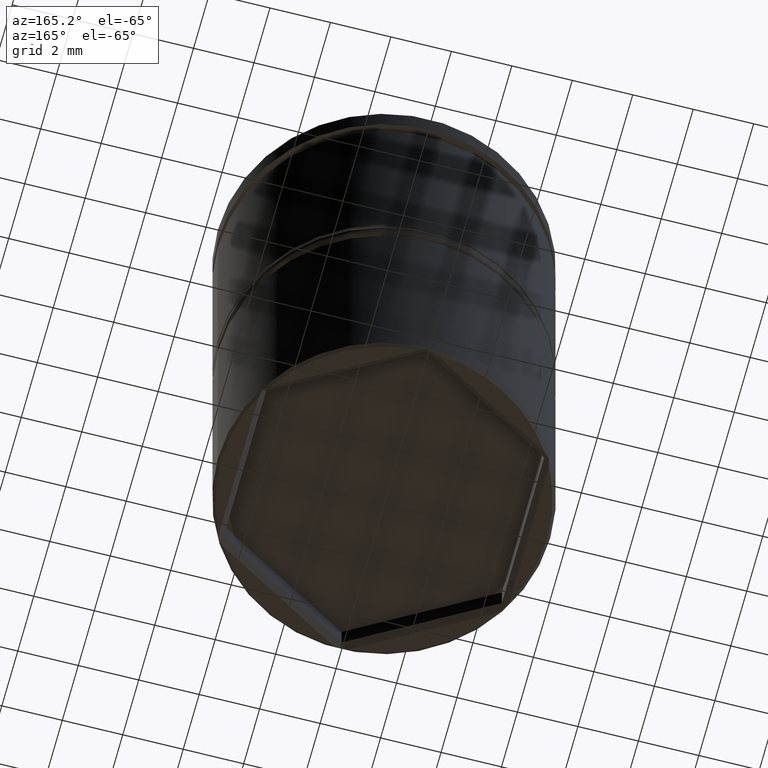
[diagram: clean part render]
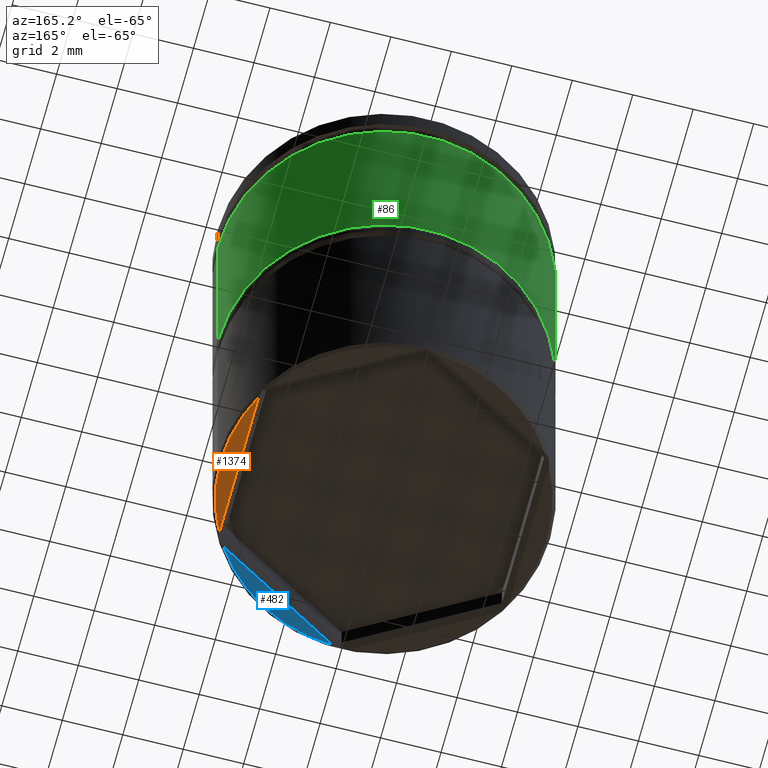
[diagram: same view with three faces highlighted in distinct colors, each labeled with its STEP entity id]
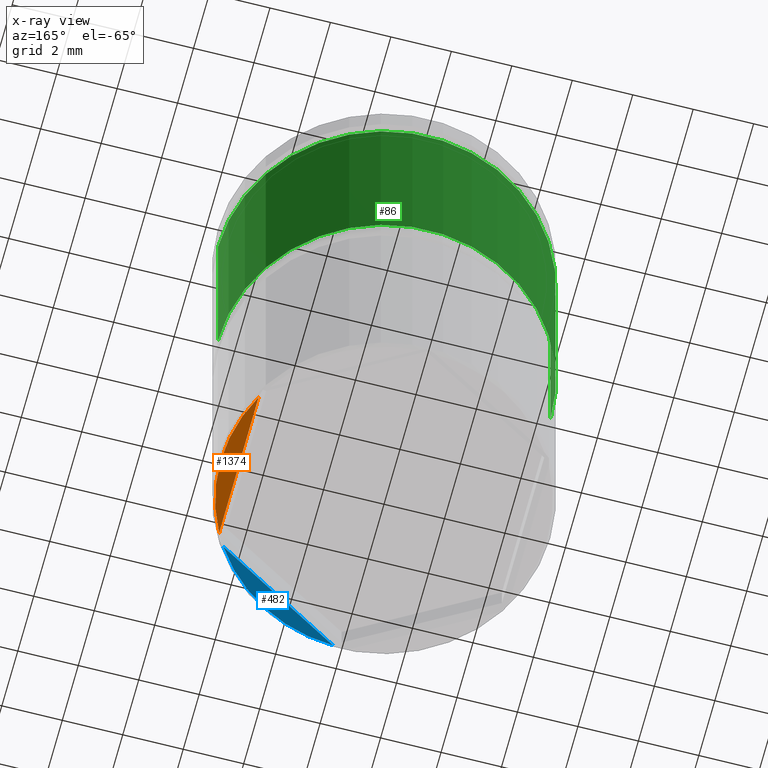
[diagram: x-ray of the same camera — body ghosted, the three highlighted faces saturated]
A machine part, auxiliary view with three faces highlighted in distinct colors.
The next image is the same camera in x-ray (body ghosted, the three faces saturated) — at least one of them is partly hidden behind the body in this view.
Their STEP definitions:

[orange] entity #1374 — the highlighted planar face has unit normal (0, 0, -1).
#12 = FACE_OUTER_BOUND ( 'NONE', #121, .T. ) ;
#58 = ORIENTED_EDGE ( 'NONE', *, *, #1050, .T. ) ;
#103 = AXIS2_PLACEMENT_3D ( 'NONE', #764, #970, #1084 ) ;
#121 = EDGE_LOOP ( 'NONE', ( #144, #1378, #58 ) ) ;
#127 = AXIS2_PLACEMENT_3D ( 'NONE', #972, #744, #656 ) ;
#144 = ORIENTED_EDGE ( 'NONE', *, *, #1160, .T. ) ;
#159 = LINE ( 'NONE', #854, #364 ) ;
#165 = CARTESIAN_POINT ( 'NONE',  ( 0.000000000000000000, 0.000000000000000000, -17.50000000000000000 ) ) ;
#172 = DIRECTION ( 'NONE',  ( -1.000000000000000000, 0.000000000000000000, 0.000000000000000000 ) ) ;
#204 = VERTEX_POINT ( 'NONE', #290 ) ;
#218 = VERTEX_POINT ( 'NONE', #715 ) ;
#253 = CIRCLE ( 'NONE', #103, 5.400000000000003908 ) ;
#290 = CARTESIAN_POINT ( 'NONE',  ( 4.800000000000002487, 2.473863375370600082, -17.50000000000000000 ) ) ;
#294 = AXIS2_PLACEMENT_3D ( 'NONE', #165, #588, #172 ) ;
#339 = CARTESIAN_POINT ( 'NONE',  ( 4.800000000000002487, -2.473863375370600082, -17.50000000000000000 ) ) ;
#364 = VECTOR ( 'NONE', #1190, 1000.000000000000000 ) ;
#416 = EDGE_CURVE ( 'NONE', #218, #617, #253, .T. ) ;
#541 = PLANE ( 'NONE',  #127 ) ;
#588 = DIRECTION ( 'NONE',  ( 0.000000000000000000, 0.000000000000000000, -1.000000000000000000 ) ) ;
#617 = VERTEX_POINT ( 'NONE', #339 ) ;
#656 = DIRECTION ( 'NONE',  ( -1.000000000000000000, 0.000000000000000000, -0.000000000000000000 ) ) ;
#682 = CIRCLE ( 'NONE', #294, 5.400000000000003908 ) ;
#715 = CARTESIAN_POINT ( 'NONE',  ( 5.400000000000003908, 0.000000000000000000, -17.50000000000000000 ) ) ;
#744 = DIRECTION ( 'NONE',  ( 0.000000000000000000, 0.000000000000000000, -1.000000000000000000 ) ) ;
#764 = CARTESIAN_POINT ( 'NONE',  ( 0.000000000000000000, 0.000000000000000000, -17.50000000000000000 ) ) ;
#854 = CARTESIAN_POINT ( 'NONE',  ( 4.800000000000002487, 2.655811238272278718, -17.50000000000000000 ) ) ;
#970 = DIRECTION ( 'NONE',  ( 0.000000000000000000, 0.000000000000000000, -1.000000000000000000 ) ) ;
#972 = CARTESIAN_POINT ( 'NONE',  ( 0.000000000000000000, 5.500000000000000000, -17.50000000000000000 ) ) ;
#1050 = EDGE_CURVE ( 'NONE', #617, #204, #159, .T. ) ;
#1084 = DIRECTION ( 'NONE',  ( -1.000000000000000000, 0.000000000000000000, 0.000000000000000000 ) ) ;
#1160 = EDGE_CURVE ( 'NONE', #204, #218, #682, .T. ) ;
#1190 = DIRECTION ( 'NONE',  ( -0.000000000000000000, 1.000000000000000000, 0.000000000000000000 ) ) ;
#1374 = ADVANCED_FACE ( 'NONE', ( #12 ), #541, .T. ) ;
#1378 = ORIENTED_EDGE ( 'NONE', *, *, #416, .T. ) ;

[blue] entity #482 — the highlighted planar face has unit normal (0, 0, -1).
#149 = CIRCLE ( 'NONE', #1085, 5.400000000000003908 ) ;
#177 = CARTESIAN_POINT ( 'NONE',  ( 0.2575714714371426517, -5.393853625850607791, -17.50000000000000000 ) ) ;
#268 = LINE ( 'NONE', #370, #429 ) ;
#305 = DIRECTION ( 'NONE',  ( -1.000000000000000000, 0.000000000000000000, 0.000000000000000000 ) ) ;
#355 = FACE_OUTER_BOUND ( 'NONE', #444, .T. ) ;
#370 = CARTESIAN_POINT ( 'NONE',  ( 4.700000000000002842, -2.829016319029166393, -17.50000000000000000 ) ) ;
#429 = VECTOR ( 'NONE', #909, 1000.000000000000114 ) ;
#444 = EDGE_LOOP ( 'NONE', ( #974, #464 ) ) ;
#464 = ORIENTED_EDGE ( 'NONE', *, *, #870, .T. ) ;
#473 = CARTESIAN_POINT ( 'NONE',  ( 4.542428528562859391, -2.919990250480007266, -17.50000000000000000 ) ) ;
#482 = ADVANCED_FACE ( 'NONE', ( #355 ), #1229, .T. ) ;
#692 = DIRECTION ( 'NONE',  ( 0.000000000000000000, 0.000000000000000000, -1.000000000000000000 ) ) ;
#870 = EDGE_CURVE ( 'NONE', #1208, #1035, #268, .T. ) ;
#889 = EDGE_CURVE ( 'NONE', #1035, #1208, #149, .T. ) ;
#894 = DIRECTION ( 'NONE',  ( -1.000000000000000000, 0.000000000000000000, -0.000000000000000000 ) ) ;
#900 = CARTESIAN_POINT ( 'NONE',  ( 0.000000000000000000, 5.500000000000000000, -17.50000000000000000 ) ) ;
#909 = DIRECTION ( 'NONE',  ( 0.8660254037844385966, 0.4999999999999999445, 0.000000000000000000 ) ) ;
#974 = ORIENTED_EDGE ( 'NONE', *, *, #889, .T. ) ;
#1020 = CARTESIAN_POINT ( 'NONE',  ( 0.000000000000000000, 0.000000000000000000, -17.50000000000000000 ) ) ;
#1025 = DIRECTION ( 'NONE',  ( 0.000000000000000000, 0.000000000000000000, -1.000000000000000000 ) ) ;
#1035 = VERTEX_POINT ( 'NONE', #473 ) ;
#1085 = AXIS2_PLACEMENT_3D ( 'NONE', #1020, #1025, #305 ) ;
#1128 = AXIS2_PLACEMENT_3D ( 'NONE', #900, #692, #894 ) ;
#1208 = VERTEX_POINT ( 'NONE', #177 ) ;
#1229 = PLANE ( 'NONE',  #1128 ) ;

[green] entity #86 — the highlighted cylindrical surface (partial cylindrical patch) has radius 5.5 mm, axis along (-0, -0, 1).
#13 = VERTEX_POINT ( 'NONE', #1301 ) ;
#18 = DIRECTION ( 'NONE',  ( -0.000000000000000000, -0.000000000000000000, 1.000000000000000000 ) ) ;
#19 = CARTESIAN_POINT ( 'NONE',  ( -5.500000000000000000, 6.735557395310442023E-16, 0.000000000000000000 ) ) ;
#63 = DIRECTION ( 'NONE',  ( 1.000000000000000000, 0.000000000000000000, 0.000000000000000000 ) ) ;
#86 = ADVANCED_FACE ( 'NONE', ( #699 ), #171, .T. ) ;
#116 = CARTESIAN_POINT ( 'NONE',  ( 5.500000000000000000, 0.000000000000000000, 0.000000000000000000 ) ) ;
#171 = CYLINDRICAL_SURFACE ( 'NONE', #523, 5.500000000000000000 ) ;
#187 = AXIS2_PLACEMENT_3D ( 'NONE', #969, #332, #348 ) ;
#215 = LINE ( 'NONE', #19, #1113 ) ;
#272 = VERTEX_POINT ( 'NONE', #1158 ) ;
#332 = DIRECTION ( 'NONE',  ( 0.000000000000000000, 0.000000000000000000, -1.000000000000000000 ) ) ;
#348 = DIRECTION ( 'NONE',  ( 1.000000000000000000, 0.000000000000000000, 0.000000000000000000 ) ) ;
#353 = VERTEX_POINT ( 'NONE', #540 ) ;
#363 = CARTESIAN_POINT ( 'NONE',  ( -5.500000000000000000, 6.735557395310442023E-16, -1.425000000000005151 ) ) ;
#367 = CARTESIAN_POINT ( 'NONE',  ( 0.000000000000000000, 0.000000000000000000, 0.000000000000000000 ) ) ;
#399 = ORIENTED_EDGE ( 'NONE', *, *, #609, .T. ) ;
#426 = EDGE_CURVE ( 'NONE', #272, #470, #215, .T. ) ;
#470 = VERTEX_POINT ( 'NONE', #363 ) ;
#523 = AXIS2_PLACEMENT_3D ( 'NONE', #367, #601, #63 ) ;
#540 = CARTESIAN_POINT ( 'NONE',  ( 5.500000000000000000, 0.000000000000000000, -1.425000000000005151 ) ) ;
#590 = AXIS2_PLACEMENT_3D ( 'NONE', #1207, #1000, #653 ) ;
#601 = DIRECTION ( 'NONE',  ( -0.000000000000000000, -0.000000000000000000, 1.000000000000000000 ) ) ;
#609 = EDGE_CURVE ( 'NONE', #470, #353, #905, .T. ) ;
#634 = VECTOR ( 'NONE', #18, 1000.000000000000000 ) ;
#647 = LINE ( 'NONE', #116, #634 ) ;
#653 = DIRECTION ( 'NONE',  ( 1.000000000000000000, 0.000000000000000000, 0.000000000000000000 ) ) ;
#698 = EDGE_CURVE ( 'NONE', #13, #272, #720, .T. ) ;
#699 = FACE_OUTER_BOUND ( 'NONE', #1138, .T. ) ;
#720 = CIRCLE ( 'NONE', #590, 5.500000000000000000 ) ;
#756 = EDGE_CURVE ( 'NONE', #13, #353, #647, .T. ) ;
#847 = ORIENTED_EDGE ( 'NONE', *, *, #426, .T. ) ;
#859 = ORIENTED_EDGE ( 'NONE', *, *, #756, .F. ) ;
#905 = CIRCLE ( 'NONE', #187, 5.500000000000000000 ) ;
#969 = CARTESIAN_POINT ( 'NONE',  ( 0.000000000000000000, 0.000000000000000000, -1.425000000000005151 ) ) ;
#1000 = DIRECTION ( 'NONE',  ( -0.000000000000000000, -0.000000000000000000, 1.000000000000000000 ) ) ;
#1069 = DIRECTION ( 'NONE',  ( -0.000000000000000000, -0.000000000000000000, 1.000000000000000000 ) ) ;
#1079 = ORIENTED_EDGE ( 'NONE', *, *, #698, .T. ) ;
#1113 = VECTOR ( 'NONE', #1069, 1000.000000000000000 ) ;
#1138 = EDGE_LOOP ( 'NONE', ( #1079, #847, #399, #859 ) ) ;
#1158 = CARTESIAN_POINT ( 'NONE',  ( -5.500000000000000000, 6.735557395310442023E-16, -8.500000000000000000 ) ) ;
#1207 = CARTESIAN_POINT ( 'NONE',  ( 0.000000000000000000, 0.000000000000000000, -8.500000000000000000 ) ) ;
#1301 = CARTESIAN_POINT ( 'NONE',  ( 5.500000000000000000, 0.000000000000000000, -8.500000000000000000 ) ) ;